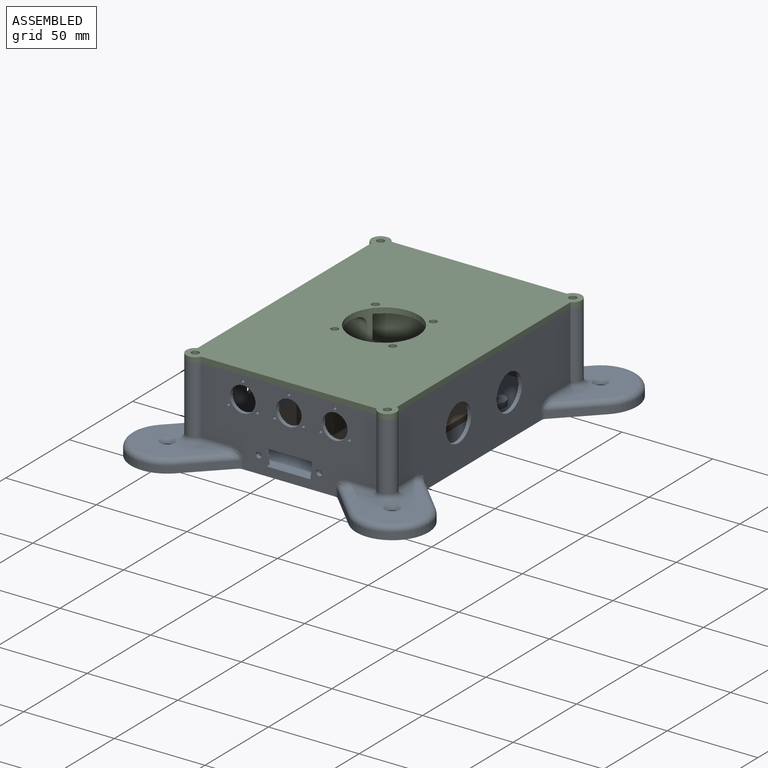
[diagram: assembled view]
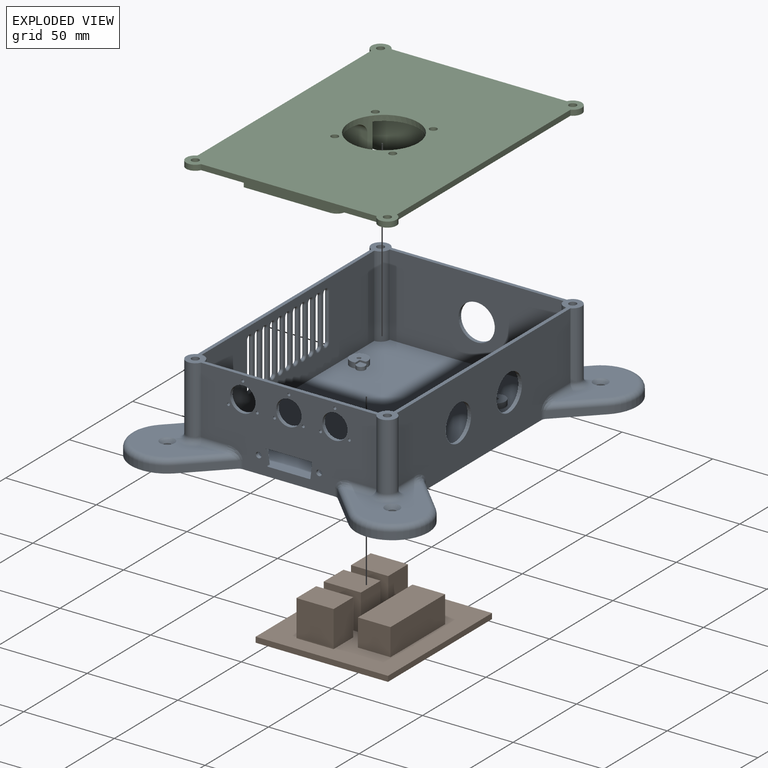
[diagram: exploded view]
GUIDED TOUR — MATED ASSEMBLY (Onshape document 905fe07d890307a66b72b982, AutoMate assembly 905fe07d890307a66b72b982_b298ac6b2c736b99d01e3df6_053c60bd6e4514457b9792d1_default)

This assembly has 3 components, labeled P0..P2 below (a component is one placed occurrence of a part; the same part can appear more than once), held together by 3 mates. A mate is a constraint between two components; its type names the relative motion it leaves free:
  CYLINDRICAL — leaves both rotation about and translation along the listed axis free,
  PLANAR — leaves sliding in the plane through the listed point (normal = the listed direction) and rotation about that normal free.
Axis/direction vectors are unit vectors and 'through' points are millimeter coordinates, both in the assembly's world frame.

MATES
  1. PLANAR "Planar 2": P2 <-> P0, direction (0.000, 0.000, -1.000) through (-70.37, 3.15, 36.85) mm
  2. CYLINDRICAL "Cylindrical 1": P2 <-> P0, axis (0.000, 0.000, 1.000) through (-5.45, -69.85, 39.85) mm
  3. PLANAR "Planar 1": P0 <-> P1, direction (0.000, 0.000, 1.000) through (-58.30, 3.12, -8.15) mm

ASSEMBLY ORDER
  1. P0 — the base component [order verified]
  2. P1 [order verified]
  3. P2 [order verified]
Order-tag legend:
  [order verified] — this step's position reverses a verified removal order: the component was checked to insert without passing through the ones already placed.

Of the 3 components, 1 carries the full construction recipe — the FeatureScript program that regenerates the part's solid from scratch; the rest are supplied as boundary geometry only.
Each toured component is shown spotlighted twice — in the assembled view, then in the exploded view, where a leader line traces a displaced component back to its assembled socket (saturated green if recipe-attached, orange if geometry-only; every other component desaturated gray) — followed by its recipe or geometry summary and the mates that hold it.
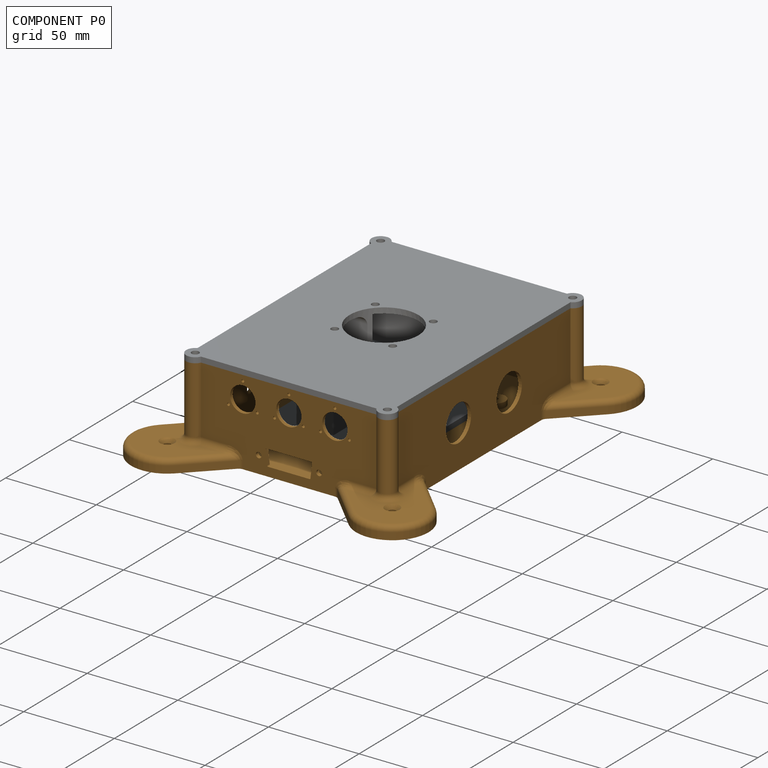
[diagram: component P0 — assembled]
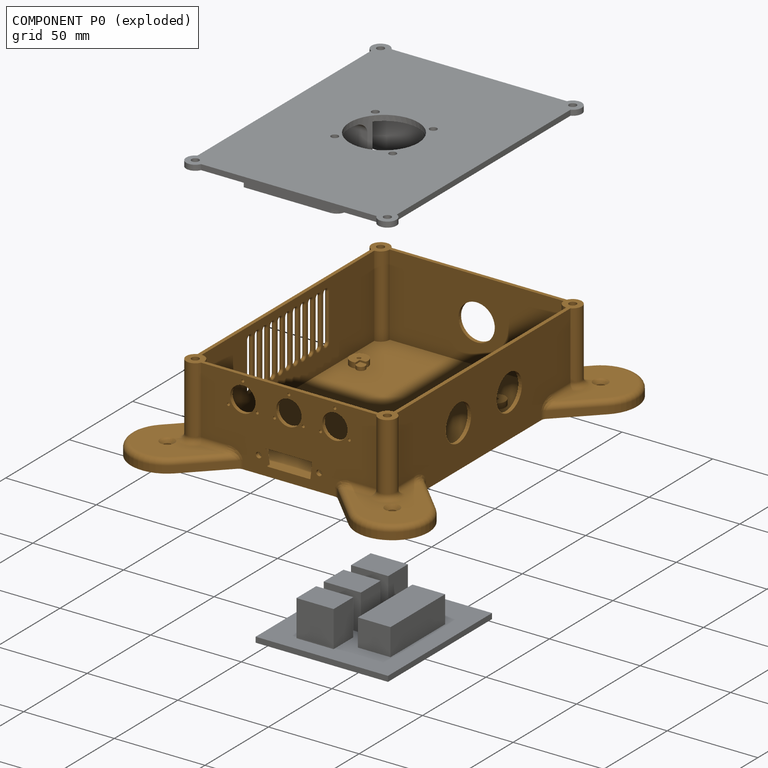
[diagram: component P0 — exploded]
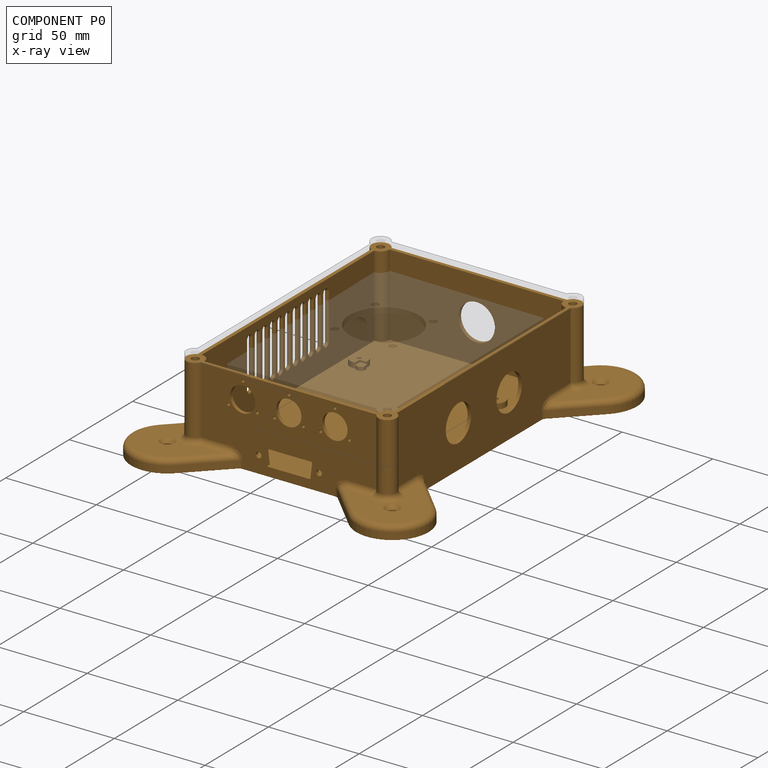
[diagram: component P0 — x-ray view]
COMPONENT P0 — geometry summary (no construction recipe available for this part):
  bounding box: 207.4 x 167.4 x 47.0 mm
  B-rep topology: 1 solid, 248 faces, 1296 edges
  volume: 119881 mm^3 (7% of its bounding box)
Held by: PLANAR mate "Planar 2" to P2; CYLINDRICAL mate "Cylindrical 1" to P2; PLANAR mate "Planar 1" to P1.
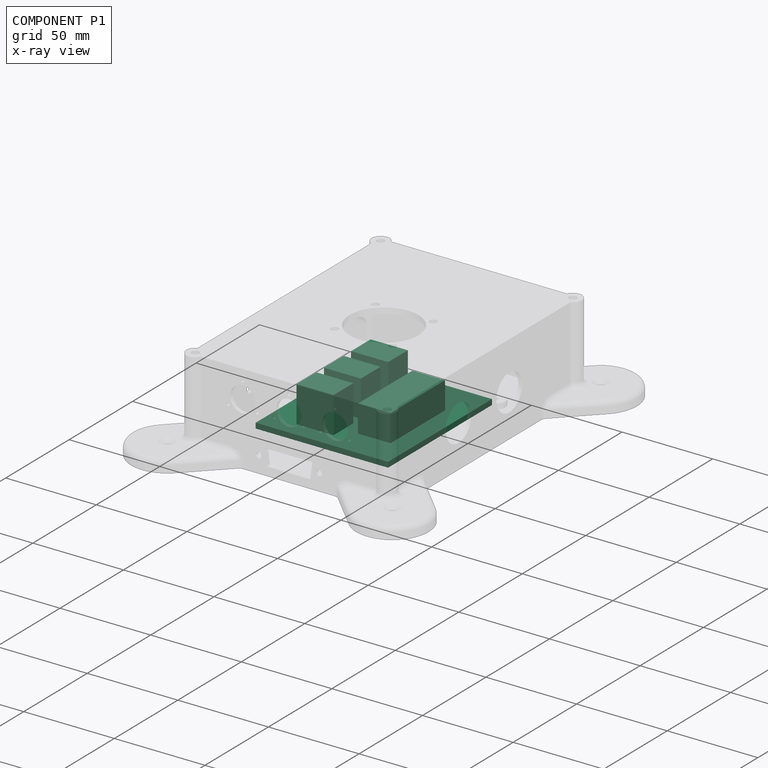
[diagram: component P1 — x-ray view]
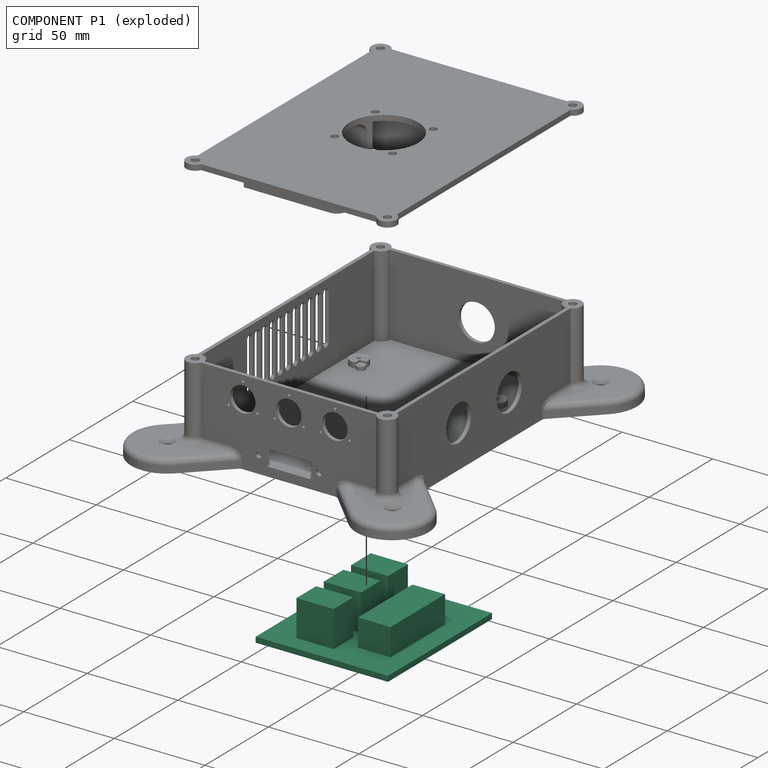
[diagram: component P1 — exploded]
COMPONENT P1 — recipe-attached (CADFS 00172069, mesh-verified: the recipe's output STEP matches this component's geometry to below the mesh-comparison resolution (tessellation chordal tolerance ~0.168 mm)).
Held by: PLANAR mate "Planar 1" to P0.
Construction recipe (FeatureScript — the CAD program that rebuilds this solid; sketch coordinates are in the units given by the * unit suffixes, e.g. mm):

FeatureScript 1605;
import(path : "onshape/std/geometry.fs", version : "1605.0");
import(path : "onshape/std/common.fs", version : "1605.0");
const mm = millimeter;
const VERTEX = EntityType.VERTEX;
const EDGE = EntityType.EDGE;
const FACE = EntityType.FACE;
const BODY = EntityType.BODY;
function v(x, y){return vector(x, y);}
function OD(order){return orderDisambiguation(order);}
function OSD(set){return originalSetDisambiguation(set);}
function TD(topology){return topologyDisambiguation(topology);}
function TDD(query){return trueDependencyDisambiguation(query);}
function sQuery(a, b, c) {return sketchEntityQuery(a, b, c);}

annotation { "Feature Type Name" : "Feature", "Feature Type Description" : "" }
export const myFeature = defineFeature(function(context is Context, id is Id, definition is map)
    precondition{}
    {
        {
            var Q0;
            Q0=qCreatedBy(makeId("Top.planeOp"),FACE);
            var sketch = newSketch(context, id + "F0", { "sketchPlane" : qUnion([Q0])});
            skLineSegment(sketch, "E0.bottom", {"start": v(36.5, 41) * mm, "end": v(-36.5, 41) * mm});
            skLineSegment(sketch, "E0.top", {"start": v(36.5, -41) * mm, "end": v(-36.5, -41) * mm});
            skLineSegment(sketch, "E0.left", {"start": v(36.5, 41) * mm, "end": v(36.5, -41) * mm});
            skLineSegment(sketch, "E0.right", {"start": v(-36.5, 41) * mm, "end": v(-36.5, -41) * mm});
            skPoint(sketch, "E0.middle", {"position": v(0, 0) * mm});
            skLineSegment(sketch, "E1.bottom", {"start": v(0, 11.3) * mm, "end": v(-20.5, 11.3) * mm});
            skLineSegment(sketch, "E1.top", {"start": v(0, 26.8) * mm, "end": v(-20.5, 26.8) * mm});
            skLineSegment(sketch, "E1.left", {"start": v(0, 11.3) * mm, "end": v(0, 26.8) * mm});
            skLineSegment(sketch, "E1.right", {"start": v(-20.5, 11.3) * mm, "end": v(-20.5, 26.8) * mm});
            skPoint(sketch, "E1.middle", {"position": v(-10.25, 19.05) * mm});
            skLineSegment(sketch, "E2.bottom", {"start": v(0, -10.2) * mm, "end": v(-20.5, -10.2) * mm});
            skLineSegment(sketch, "E2.top", {"start": v(0, 5.3) * mm, "end": v(-20.5, 5.3) * mm});
            skLineSegment(sketch, "E2.left", {"start": v(0, -10.2) * mm, "end": v(0, 5.3) * mm});
            skLineSegment(sketch, "E2.right", {"start": v(-20.5, -10.2) * mm, "end": v(-20.5, 5.3) * mm});
            skPoint(sketch, "E2.middle", {"position": v(-10.25, -2.45) * mm});
            skLineSegment(sketch, "E3.bottom", {"start": v(0, -31.7) * mm, "end": v(-20.5, -31.7) * mm});
            skLineSegment(sketch, "E3.top", {"start": v(0, -16.2) * mm, "end": v(-20.5, -16.2) * mm});
            skLineSegment(sketch, "E3.left", {"start": v(0, -31.7) * mm, "end": v(0, -16.2) * mm});
            skLineSegment(sketch, "E3.right", {"start": v(-20.5, -31.7) * mm, "end": v(-20.5, -16.2) * mm});
            skPoint(sketch, "E3.middle", {"position": v(-10.25, -23.95) * mm});
            skLineSegment(sketch, "E4.bottom", {"start": v(26, 19) * mm, "end": v(8, 19) * mm});
            skLineSegment(sketch, "E4.top", {"start": v(26, -24) * mm, "end": v(8, -24) * mm});
            skLineSegment(sketch, "E4.left", {"start": v(26, 19) * mm, "end": v(26, -24) * mm});
            skLineSegment(sketch, "E4.right", {"start": v(8, 19) * mm, "end": v(8, -24) * mm});
            skPoint(sketch, "E4.middle", {"position": v(17, -2.5) * mm});
            skLineSegment(sketch, "E5", {"start": v(-10.25, -2.45) * mm, "end": v(-10.25, 19.05) * mm, "construction": true});
            skLineSegment(sketch, "E6", {"start": v(-10.25, -23.95) * mm, "end": v(-10.25, -2.45) * mm, "construction": true});
            skSolve(sketch);
        }
        {
            var Q0;
            Q0=makeQuery(id+"F0.imprint","IMPRINT",FACE,{"disambiguationData":[TD([[makeQuery(id+"F0.imprint","IMPRINT",EDGE,{"derivedFrom":sQuery(id+"F0.wireOp",EDGE,"E0.bottom")}),1.0]])]});
            var Q1;
            Q1=makeQuery(id+"F0.imprint","IMPRINT",FACE,{"disambiguationData":[TD([[makeQuery(id+"F0.imprint","IMPRINT",EDGE,{"derivedFrom":sQuery(id+"F0.wireOp",EDGE,"E4.bottom")}),1.0]])]});
            var Q2;
            Q2=makeQuery(id+"F0.imprint","IMPRINT",FACE,{"disambiguationData":[TD([[makeQuery(id+"F0.imprint","IMPRINT",EDGE,{"derivedFrom":sQuery(id+"F0.wireOp",EDGE,"E2.bottom")}),-1.0]])]});
            var Q3;
            Q3=makeQuery(id+"F0.imprint","IMPRINT",FACE,{"disambiguationData":[TD([[makeQuery(id+"F0.imprint","IMPRINT",EDGE,{"derivedFrom":sQuery(id+"F0.wireOp",EDGE,"E3.bottom")}),-1.0]])]});
            var Q4;
            Q4=makeQuery(id+"F0.imprint","IMPRINT",FACE,{"disambiguationData":[TD([[makeQuery(id+"F0.imprint","IMPRINT",EDGE,{"derivedFrom":sQuery(id+"F0.wireOp",EDGE,"E1.bottom")}),-1.0]])]});
            extrude(context, id + "F1", {"entities" : qUnion([Q0, Q1, Q2, Q3, Q4]), "oppositeDirection" : true, "depth" : 3 * mm});
        }
        {
            var Q0;
            Q0=makeQuery(id+"F0.imprint","IMPRINT",FACE,{"disambiguationData":[TD([[makeQuery(id+"F0.imprint","IMPRINT",EDGE,{"derivedFrom":sQuery(id+"F0.wireOp",EDGE,"E3.bottom")}),-1.0]])]});
            var Q1;
            Q1=makeQuery(id+"F0.imprint","IMPRINT",FACE,{"disambiguationData":[TD([[makeQuery(id+"F0.imprint","IMPRINT",EDGE,{"derivedFrom":sQuery(id+"F0.wireOp",EDGE,"E2.bottom")}),-1.0]])]});
            var Q2;
            Q2=makeQuery(id+"F0.imprint","IMPRINT",FACE,{"disambiguationData":[TD([[makeQuery(id+"F0.imprint","IMPRINT",EDGE,{"derivedFrom":sQuery(id+"F0.wireOp",EDGE,"E1.bottom")}),-1.0]])]});
            extrude(context, id + "F2", {"entities" : qUnion([Q0, Q1, Q2]), "operationType" : NewBodyOperationType.ADD, "depth" : 20 * mm});
        }
        {
            var Q0;
            Q0=makeQuery(id+"F0.imprint","IMPRINT",FACE,{"disambiguationData":[TD([[makeQuery(id+"F0.imprint","IMPRINT",EDGE,{"derivedFrom":sQuery(id+"F0.wireOp",EDGE,"E4.bottom")}),1.0]])]});
            extrude(context, id + "F3", {"entities" : qUnion([Q0]), "operationType" : NewBodyOperationType.ADD, "depth" : 15 * mm});
        }
    });
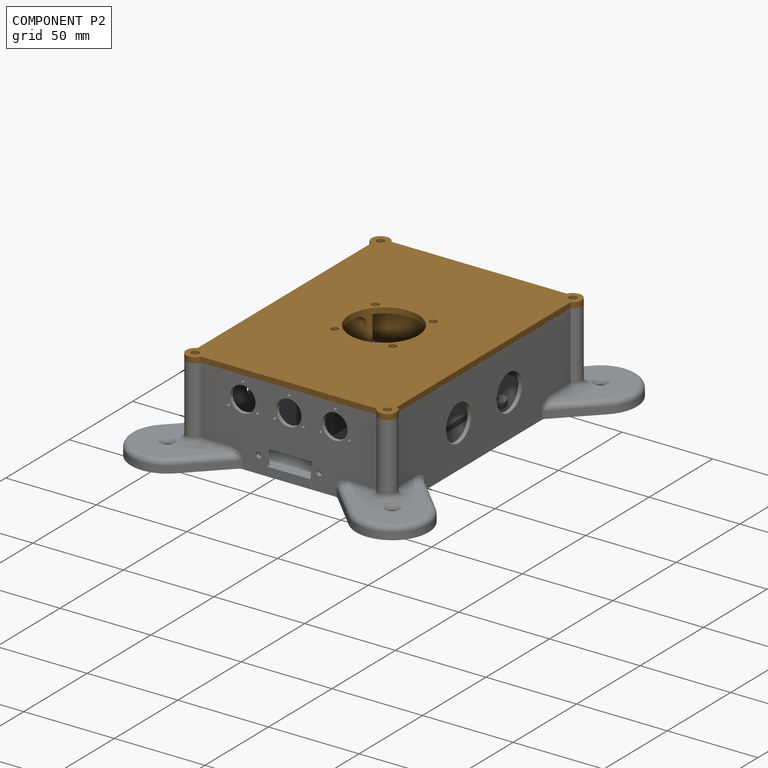
[diagram: component P2 — assembled]
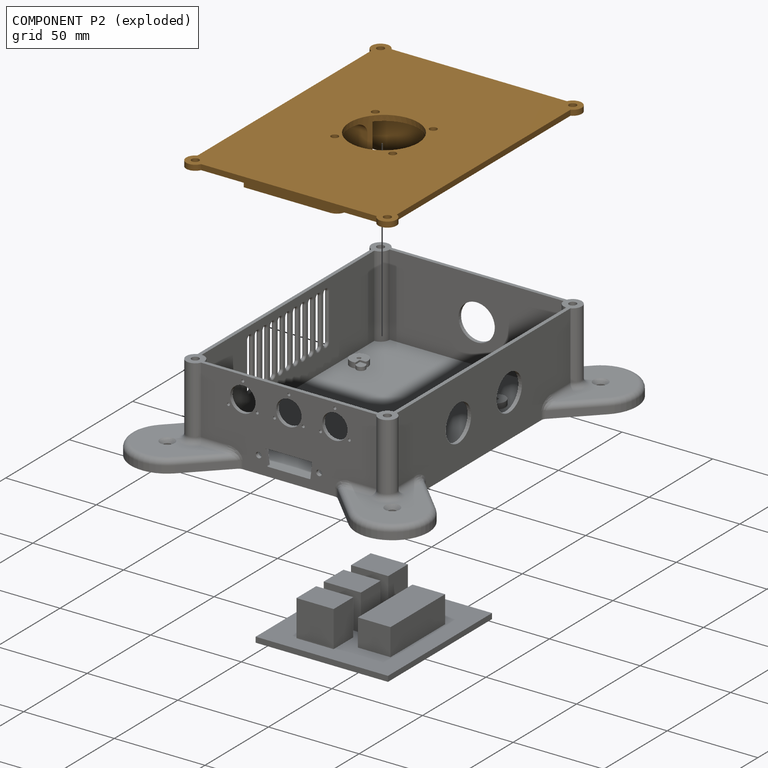
[diagram: component P2 — exploded]
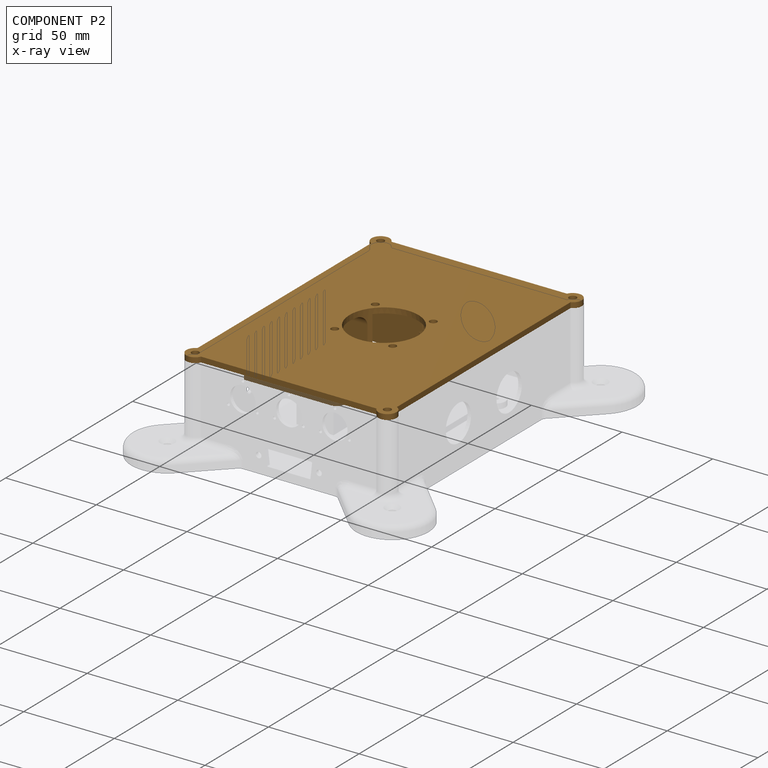
[diagram: component P2 — x-ray view]
COMPONENT P2 — geometry summary (no construction recipe available for this part):
  bounding box: 162.0 x 122.0 x 38.2 mm
  B-rep topology: 1 solid, 62 faces, 350 edges
  volume: 67956 mm^3 (9% of its bounding box)
  symmetry: mirror-symmetric across its y mid-plane
Held by: PLANAR mate "Planar 2" to P0; CYLINDRICAL mate "Cylindrical 1" to P0.
PROVENANCE & LICENSES
Assembly (occurrences, transforms, mates, per-part STEP geometry): AutoMate dataset, Zenodo record 7776208, CC0.
Construction recipes: CADFS (HuggingFace VladPyatov/CADFS, CC-BY-4.0, layered over the ABC dataset), FeatureScript reconstruction programs keyed by ABC model id.
Join: ABC meta listings map ABC model id -> Onshape documentId; within a shared document, parts are matched by geometric signature (bounding-box dims + volume at 0.1% relative tolerance, exact B-rep face/solid counts).
Verification: 1 of this assembly's 3 components carries a recipe attachment, and every attachment is mesh-verified: the CADFS STEP and the AutoMate member STEP were compared as meshes in their shared local frame (symmetric sampled-point-to-mesh distance); worst across the 1 attachment: below the mesh-comparison resolution (tessellation chordal tolerance ~0.168 mm) on a 112 mm part.
Renders: orthographic iso camera (az 35 / el 25); the floor grid conveys scale (grid pitch printed in each image; no ruler). In the exploded view each component is displaced by its stored offset vector: the offsets alone carry the explosion direction (mate normal/axis signs are not orientation cues and do not encode it), and separation distances are assigned per mate-chain, not proportionally to assembly-order depth.
